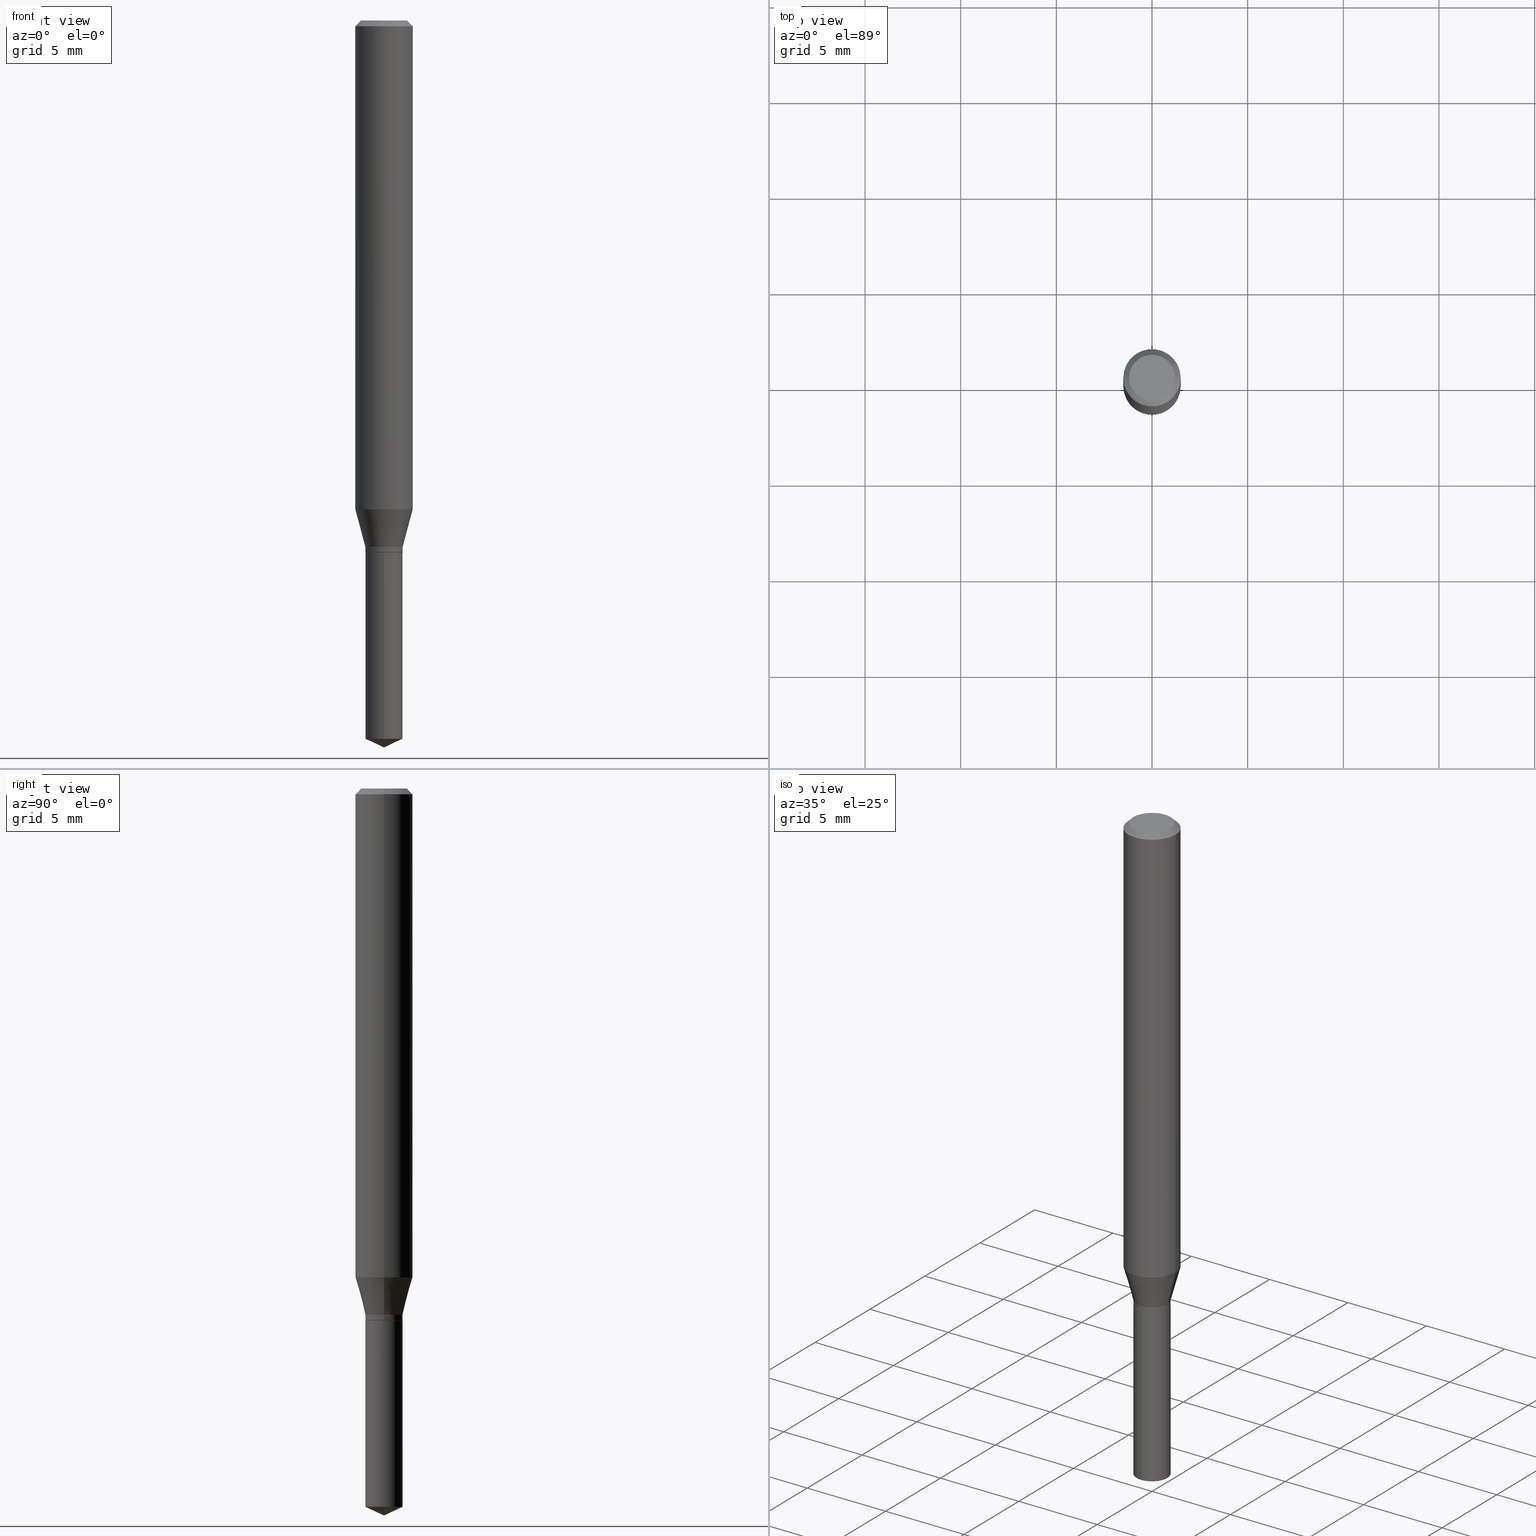
[diagram: canonical four-view strip — front | top / right | iso, engineering-drawing reading convention]
A machine part, canonical four-view strip (front | top / right | iso — engineering-drawing reading convention). The complete STEP part file that produces these views, byte-faithful:
ISO-10303-21;
HEADER;
FILE_DESCRIPTION (( 'STEP AP203' ),
    '1' );
FILE_NAME ('07594.STEP',
    '2024-04-23T23:28:40',
    ( '' ),
    ( '' ),
    'SwSTEP 2.0',
    'SolidWorks 2023',
    '' );
FILE_SCHEMA (( 'CONFIG_CONTROL_DESIGN' ));
ENDSEC;

DATA;
#1 = ADVANCED_FACE ( 'NONE', ( #374 ), #188, .T. ) ;
#2 = CARTESIAN_POINT ( 'NONE',  ( -0.05905000000000006077, 4.195754854663395916E-16, -2.904631170795524694E-30 ) ) ;
#3 = DIMENSIONAL_EXPONENTS ( 1.000000000000000000, 0.000000000000000000, 0.000000000000000000, 0.000000000000000000, 0.000000000000000000, 0.000000000000000000, 0.000000000000000000 ) ;
#4 = CIRCLE ( 'NONE', #289, 0.03840000000000000357 ) ;
#5 = DIRECTION ( 'NONE',  ( 1.000000000000000000, -6.982962677686264344E-15, 0.000000000000000000 ) ) ;
#6 = DIRECTION ( 'NONE',  ( -2.445468806185136597E-29, 3.491481338843145583E-15, 1.000000000000000000 ) ) ;
#7 = LINE ( 'NONE', #43, #109 ) ;
#8 = ORIENTED_EDGE ( 'NONE', *, *, #10, .T. ) ;
#9 = CARTESIAN_POINT ( 'NONE',  ( 2.676565608369631794E-29, -3.821426325363822773E-15, -1.094499999999999806 ) ) ;
#10 = EDGE_CURVE ( 'NONE', #433, #216, #476, .T. ) ;
#11 = DIRECTION ( 'NONE',  ( -6.982962677686266711E-15, -1.000000000000000000, 0.000000000000000000 ) ) ;
#12 = ORIENTED_EDGE ( 'NONE', *, *, #142, .T. ) ;
#13 = CIRCLE ( 'NONE', #190, 0.03840000000000000357 ) ;
#14 = ORIENTED_EDGE ( 'NONE', *, *, #221, .T. ) ;
#15 = DIRECTION ( 'NONE',  ( -2.445468806185136597E-29, 3.491481338843145583E-15, 1.000000000000000000 ) ) ;
#16 = APPROVAL_PERSON_ORGANIZATION ( #464, #342, #286 ) ;
#17 = CYLINDRICAL_SURFACE ( 'NONE', #257, 0.03840000000000000357 ) ;
#18 = VERTEX_POINT ( 'NONE', #154 ) ;
#19 = DIRECTION ( 'NONE',  ( 0.000000000000000000, 0.000000000000000000, 1.000000000000000000 ) ) ;
#20 = ORIENTED_EDGE ( 'NONE', *, *, #358, .T. ) ;
#21 = CC_DESIGN_DATE_AND_TIME_ASSIGNMENT ( #259, #263, ( #350 ) ) ;
#22 = VERTEX_POINT ( 'NONE', #443 ) ;
#23 = AXIS2_PLACEMENT_3D ( 'NONE', #299, #197, #412 ) ;
#24 = LOCAL_TIME ( 19, 28, 40.00000000000000000, #266 ) ;
#25 = ORIENTED_EDGE ( 'NONE', *, *, #382, .F. ) ;
#26 = DATE_TIME_ROLE ( 'creation_date' ) ;
#27 = EDGE_CURVE ( 'NONE', #98, #22, #44, .T. ) ;
#28 = FACE_OUTER_BOUND ( 'NONE', #394, .T. ) ;
#29 = CARTESIAN_POINT ( 'NONE',  ( 0.000000000000000000, 0.000000000000000000, 0.000000000000000000 ) ) ;
#30 = CC_DESIGN_PERSON_AND_ORGANIZATION_ASSIGNMENT ( #368, #108, ( #125 ) ) ;
#31 = DATE_AND_TIME ( #372, #187 ) ;
#32 = EDGE_LOOP ( 'NONE', ( #132, #330, #474, #452 ) ) ;
#33 = DIRECTION ( 'NONE',  ( -2.445458899330790108E-29, 3.491495526022433205E-15, 1.000000000000000000 ) ) ;
#34 = CC_DESIGN_PERSON_AND_ORGANIZATION_ASSIGNMENT ( #441, #475, ( #390 ) ) ;
#35 = PRODUCT_DEFINITION_SHAPE ( 'NONE', 'NONE',  #125 ) ;
#36 = CARTESIAN_POINT ( 'NONE',  ( -0.03789999999999999619, -3.549481401336633678E-15, -1.094500000000000028 ) ) ;
#37 = VECTOR ( 'NONE', #410, 39.37007874015748143 ) ;
#38 = CONICAL_SURFACE ( 'NONE', #319, 0.03840000000000000357, 0.2617993877991499074 ) ;
#39 = EDGE_CURVE ( 'NONE', #18, #333, #65, .T. ) ;
#40 = DIRECTION ( 'NONE',  ( 1.000000000000000000, -6.982962677686265922E-15, 4.876176775795935793E-29 ) ) ;
#41 = CARTESIAN_POINT ( 'NONE',  ( 3.614872991782365897E-29, -5.161091462290022333E-15, -1.478193785926848136 ) ) ;
#42 = DIRECTION ( 'NONE',  ( -2.445458899330790108E-29, 3.491495526022433205E-15, 1.000000000000000000 ) ) ;
#43 = CARTESIAN_POINT ( 'NONE',  ( -0.03840000000000000357, -3.508425879435247821E-15, -1.082999999999999963 ) ) ;
#44 = CIRCLE ( 'NONE', #224, 0.03789999999999999619 ) ;
#45 = CIRCLE ( 'NONE', #329, 0.05904999999999999832 ) ;
#46 = CARTESIAN_POINT ( 'NONE',  ( -2.681457668231258890E-16, -0.03840000000000381997, -1.094499999999999806 ) ) ;
#47 = CC_DESIGN_APPROVAL ( #264, ( #390 ) ) ;
#48 = EDGE_CURVE ( 'NONE', #240, #409, #486, .T. ) ;
#49 = DIRECTION ( 'NONE',  ( 1.000000000000000000, -6.982962677686265133E-15, 0.000000000000000000 ) ) ;
#50 = ORIENTED_EDGE ( 'NONE', *, *, #100, .T. ) ;
#51 = CONICAL_SURFACE ( 'NONE', #136, 84.42940631927434936, 1.134464013796316006 ) ;
#52 = AXIS2_PLACEMENT_3D ( 'NONE', #127, #15, #256 ) ;
#53 = ADVANCED_FACE ( 'NONE', ( #305 ), #144, .T. ) ;
#54 = ORIENTED_EDGE ( 'NONE', *, *, #48, .F. ) ;
#55 = ORIENTED_EDGE ( 'NONE', *, *, #318, .T. ) ;
#56 = CC_DESIGN_PERSON_AND_ORGANIZATION_ASSIGNMENT ( #93, #320, ( #114 ) ) ;
#57 = CALENDAR_DATE ( 2024, 23, 4 ) ;
#58 = ORIENTED_EDGE ( 'NONE', *, *, #76, .F. ) ;
#59 = VECTOR ( 'NONE', #151, 39.37007874015748854 ) ;
#60 = AXIS2_PLACEMENT_3D ( 'NONE', #156, #307, #72 ) ;
#61 = EDGE_LOOP ( 'NONE', ( #253, #428 ) ) ;
#62 = PERSON_AND_ORGANIZATION ( #171, #218 ) ;
#63 = DIRECTION ( 'NONE',  ( 1.000000000000000000, -6.982962677686264344E-15, 0.000000000000000000 ) ) ;
#64 = SECURITY_CLASSIFICATION_LEVEL ( 'unclassified' ) ;
#65 = LINE ( 'NONE', #298, #487 ) ;
#66 = FACE_OUTER_BOUND ( 'NONE', #214, .T. ) ;
#67 = APPROVAL_ROLE ( '' ) ;
#68 = DIRECTION ( 'NONE',  ( -2.445458899330790108E-29, 3.491495526022433205E-15, 1.000000000000000000 ) ) ;
#69 = CIRCLE ( 'NONE', #202, 0.03840000000000000357 ) ;
#70 = ORIENTED_EDGE ( 'NONE', *, *, #139, .T. ) ;
#71 = AXIS2_PLACEMENT_3D ( 'NONE', #388, #170, #466 ) ;
#72 = DIRECTION ( 'NONE',  ( -1.000000000000000000, 6.982962677686265922E-15, -4.876176775795935793E-29 ) ) ;
#73 = CYLINDRICAL_SURFACE ( 'NONE', #275, 0.03840000000000000357 ) ;
#74 = LINE ( 'NONE', #164, #153 ) ;
#75 = DIRECTION ( 'NONE',  ( 1.000000000000000000, -6.982962677686266711E-15, 0.000000000000000000 ) ) ;
#76 = EDGE_CURVE ( 'NONE', #409, #366, #115, .T. ) ;
#77 = DIRECTION ( 'NONE',  ( 1.000000000000000000, -6.982962677686264344E-15, 0.000000000000000000 ) ) ;
#78 = EDGE_LOOP ( 'NONE', ( #288, #245, #180, #210 ) ) ;
#79 = DIRECTION ( 'NONE',  ( 2.445468806185136597E-29, -3.491481338843145583E-15, -1.000000000000000000 ) ) ;
#80 = CARTESIAN_POINT ( 'NONE',  ( 2.459978141446892264E-29, -3.512196824224644331E-15, -1.005933150823702382 ) ) ;
#81 = DIRECTION ( 'NONE',  ( -2.445458899330790108E-29, 3.491495526022433599E-15, 1.000000000000000000 ) ) ;
#82 = APPLICATION_CONTEXT ( 'configuration controlled 3d designs of mechanical parts and assemblies' ) ;
#83 = ORIENTED_EDGE ( 'NONE', *, *, #215, .T. ) ;
#84 = CARTESIAN_POINT ( 'NONE',  ( 0.000000000000000000, 0.000000000000000000, 0.000000000000000000 ) ) ;
#85 = DIRECTION ( 'NONE',  ( -2.445458899330790108E-29, 3.491495526022433205E-15, 1.000000000000000000 ) ) ;
#86 = CARTESIAN_POINT ( 'NONE',  ( 3.658651059288794515E-29, -5.223626456482161457E-15, -1.496099999999999985 ) ) ;
#87 = UNCERTAINTY_MEASURE_WITH_UNIT (LENGTH_MEASURE( 1.000000000000000082E-05 ), #332, 'distance_accuracy_value', 'NONE');
#88 = CC_DESIGN_DATE_AND_TIME_ASSIGNMENT ( #334, #26, ( #125 ) ) ;
#89 = COORDINATED_UNIVERSAL_TIME_OFFSET ( 5, 0, .BEHIND. ) ;
#90 = ADVANCED_FACE ( 'NONE', ( #449 ), #73, .T. ) ;
#91 = ORIENTED_EDGE ( 'NONE', *, *, #191, .T. ) ;
#92 = ORIENTED_EDGE ( 'NONE', *, *, #163, .F. ) ;
#93 = PERSON_AND_ORGANIZATION ( #171, #218 ) ;
#94 = DIRECTION ( 'NONE',  ( 0.7071067811864267805, -2.468850131080992517E-15, 0.7071067811866682540 ) ) ;
#95 = ORIENTED_EDGE ( 'NONE', *, *, #479, .F. ) ;
#96 = AXIS2_PLACEMENT_3D ( 'NONE', #158, #346, #455 ) ;
#97 = CARTESIAN_POINT ( 'NONE',  ( -0.03840000000000000357, -3.527629026798885149E-15, -1.093999999999999861 ) ) ;
#98 = VERTEX_POINT ( 'NONE', #36 ) ;
#99 = DIRECTION ( 'NONE',  ( -6.982962677686265133E-15, -1.000000000000000000, 3.557093741750342424E-15 ) ) ;
#100 = EDGE_CURVE ( 'NONE', #323, #438, #4, .T. ) ;
#101 = DIRECTION ( 'NONE',  ( 1.000000000000000000, 0.000000000000000000, 0.000000000000000000 ) ) ;
#102 = CIRCLE ( 'NONE', #356, 0.03840000000000000357 ) ;
#103 = ORIENTED_EDGE ( 'NONE', *, *, #420, .T. ) ;
#104 = COORDINATED_UNIVERSAL_TIME_OFFSET ( 5, 0, .BEHIND. ) ;
#105 = CARTESIAN_POINT ( 'NONE',  ( 3.658672935554494692E-29, -5.223595400746700193E-15, -1.496099999999999985 ) ) ;
#106 = CARTESIAN_POINT ( 'NONE',  ( 0.03840000000000000357, -4.087826351517553684E-15, -1.093999999999999861 ) ) ;
#107 = DIRECTION ( 'NONE',  ( -6.982962677686266711E-15, -1.000000000000000000, 0.000000000000000000 ) ) ;
#108 = PERSON_AND_ORGANIZATION_ROLE ( 'creator' ) ;
#109 = VECTOR ( 'NONE', #349, 39.37007874015748854 ) ;
#110 = EDGE_CURVE ( 'NONE', #323, #18, #400, .T. ) ;
#111 = CARTESIAN_POINT ( 'NONE',  ( 2.648442717098502966E-29, -3.781274289967126614E-15, -1.082999999999999963 ) ) ;
#112 = APPLICATION_PROTOCOL_DEFINITION ( 'international standard', 'config_control_design', 1994, #378 ) ;
#113 = CARTESIAN_POINT ( 'NONE',  ( 2.676565608369632355E-29, -3.821426325363822773E-15, -1.094500000000000028 ) ) ;
#114 = PRODUCT ( '07594', '07594', '', ( #291 ) ) ;
#115 = LINE ( 'NONE', #304, #37 ) ;
#116 = ADVANCED_FACE ( 'NONE', ( #28 ), #51, .T. ) ;
#117 = DIRECTION ( 'NONE',  ( -2.445458899330790108E-29, 3.491495526022433205E-15, 1.000000000000000000 ) ) ;
#118 = ORIENTED_EDGE ( 'NONE', *, *, #402, .F. ) ;
#119 = ADVANCED_FACE ( 'NONE', ( #371 ), #185, .T. ) ;
#120 = AXIS2_PLACEMENT_3D ( 'NONE', #310, #386, #205 ) ;
#121 = CYLINDRICAL_SURFACE ( 'NONE', #248, 0.03840000000000000357 ) ;
#122 = FACE_OUTER_BOUND ( 'NONE', #294, .T. ) ;
#123 = FACE_OUTER_BOUND ( 'NONE', #32, .T. ) ;
#124 = FACE_OUTER_BOUND ( 'NONE', #148, .T. ) ;
#125 = PRODUCT_DEFINITION ( 'UNKNOWN', '', #390, #435 ) ;
#126 = ORIENTED_EDGE ( 'NONE', *, *, #168, .T. ) ;
#127 = CARTESIAN_POINT ( 'NONE',  ( 2.888098660104663766E-31, -4.123439461173779647E-17, -0.01181000000000007044 ) ) ;
#128 = ORIENTED_EDGE ( 'NONE', *, *, #139, .F. ) ;
#129 = ADVANCED_BREP_SHAPE_REPRESENTATION ( '07594', ( #482, #313, #155 ), #279 ) ;
#130 = APPROVAL_STATUS ( 'not_yet_approved' ) ;
#131 = CARTESIAN_POINT ( 'NONE',  ( -0.05905000000000011628, -3.092621338758304049E-15, -1.005933150823702382 ) ) ;
#132 = ORIENTED_EDGE ( 'NONE', *, *, #420, .F. ) ;
#133 = APPROVAL ( #405, 'UNSPECIFIED' ) ;
#134 = CARTESIAN_POINT ( 'NONE',  ( 0.05905000000000006077, -4.123439461173744764E-16, 2.879382386107503023E-30 ) ) ;
#135 = ORIENTED_EDGE ( 'NONE', *, *, #200, .F. ) ;
#136 = AXIS2_PLACEMENT_3D ( 'NONE', #265, #68, #182 ) ;
#137 = CARTESIAN_POINT ( 'NONE',  ( 0.03789999999999999619, -4.086080610848132181E-15, -1.094500000000000028 ) ) ;
#138 = EDGE_LOOP ( 'NONE', ( #473, #326 ) ) ;
#139 = EDGE_CURVE ( 'NONE', #409, #463, #199, .T. ) ;
#140 = ORIENTED_EDGE ( 'NONE', *, *, #209, .F. ) ;
#141 = ORIENTED_EDGE ( 'NONE', *, *, #168, .F. ) ;
#142 = EDGE_CURVE ( 'NONE', #216, #176, #226, .T. ) ;
#143 = PERSON_AND_ORGANIZATION ( #171, #218 ) ;
#144 = CONICAL_SURFACE ( 'NONE', #316, 0.03840000000000000357, 0.2617993877991499074 ) ;
#145 = CIRCLE ( 'NONE', #415, 0.03840000000000000357 ) ;
#146 = CARTESIAN_POINT ( 'NONE',  ( -0.05904999999999999832, 3.711095515056362547E-16, -0.01181000000000007044 ) ) ;
#147 = VECTOR ( 'NONE', #360, 39.37007874015748143 ) ;
#148 = EDGE_LOOP ( 'NONE', ( #54, #207, #128 ) ) ;
#149 = DIRECTION ( 'NONE',  ( 1.000000000000000000, -6.982962677686264344E-15, 0.000000000000000000 ) ) ;
#150 = DIRECTION ( 'NONE',  ( -6.982962677686265133E-15, -1.000000000000000000, 3.557093741750342424E-15 ) ) ;
#151 = DIRECTION ( 'NONE',  ( 6.439704144417030353E-15, 0.9063077870366521571, 0.4226182617406946673 ) ) ;
#152 = CARTESIAN_POINT ( 'NONE',  ( -0.03789999999999999619, -3.552130628510744879E-15, -1.094500000000000028 ) ) ;
#153 = VECTOR ( 'NONE', #384, 39.37007874015748143 ) ;
#154 = CARTESIAN_POINT ( 'NONE',  ( 0.03840000000000000357, -4.049420056790279028E-15, -1.082999999999999963 ) ) ;
#155 = AXIS2_PLACEMENT_3D ( 'NONE', #84, #19, #101 ) ;
#156 = CARTESIAN_POINT ( 'NONE',  ( 4.132873053354867254E-48, -5.900647395337818946E-34, -1.690012582823346072E-19 ) ) ;
#157 = CARTESIAN_POINT ( 'NONE',  ( -9.261924752013118283E-28, 1.322368428517963298E-13, 37.87397874015748300 ) ) ;
#158 = CARTESIAN_POINT ( 'NONE',  ( 8.265746106709734507E-48, -1.180129479067563789E-33, -3.380025165646692144E-19 ) ) ;
#159 = CIRCLE ( 'NONE', #478, 0.03840000000000000357 ) ;
#160 = CIRCLE ( 'NONE', #23, 0.05905000000000011628 ) ;
#161 = ADVANCED_FACE ( 'NONE', ( #123 ), #383, .T. ) ;
#162 = LINE ( 'NONE', #194, #169 ) ;
#163 = EDGE_CURVE ( 'NONE', #472, #469, #7, .T. ) ;
#164 = CARTESIAN_POINT ( 'NONE',  ( 0.05904999999999999832, -4.463468013801466955E-16, -0.01181000000000007044 ) ) ;
#165 = FACE_OUTER_BOUND ( 'NONE', #292, .T. ) ;
#166 = DIRECTION ( 'NONE',  ( -6.982962677686265133E-15, -1.000000000000000000, 3.557093741750342424E-15 ) ) ;
#167 = ORIENTED_EDGE ( 'NONE', *, *, #358, .F. ) ;
#168 = EDGE_CURVE ( 'NONE', #463, #174, #281, .T. ) ;
#169 = VECTOR ( 'NONE', #203, 39.37007874015748143 ) ;
#170 = DIRECTION ( 'NONE',  ( -2.445468806185136597E-29, 3.491481338843145583E-15, 1.000000000000000000 ) ) ;
#171 = PERSON ( 'UNSPECIFIED', 'UNSPECIFIED', 'UNSPECIFIED', ('UNSPECIFIED'), ('UNSPECIFIED'), ('UNSPECIFIED') ) ;
#172 = EDGE_LOOP ( 'NONE', ( #167, #290, #243, #295 ) ) ;
#173 = EDGE_CURVE ( 'NONE', #472, #18, #13, .T. ) ;
#174 = VERTEX_POINT ( 'NONE', #46 ) ;
#175 = AXIS2_PLACEMENT_3D ( 'NONE', #242, #345, #235 ) ;
#176 = VERTEX_POINT ( 'NONE', #280 ) ;
#177 = APPROVAL_DATE_TIME ( #31, #133 ) ;
#178 = LENGTH_MEASURE_WITH_UNIT ( LENGTH_MEASURE( 0.02539999999999999897 ), #293 );
#179 = EDGE_CURVE ( 'NONE', #438, #323, #159, .T. ) ;
#180 = ORIENTED_EDGE ( 'NONE', *, *, #318, .F. ) ;
#181 = PERSON_AND_ORGANIZATION_ROLE ( 'design_supplier' ) ;
#182 = DIRECTION ( 'NONE',  ( -6.982962677686266711E-15, -1.000000000000000000, 3.520397390770453475E-15 ) ) ;
#183 = APPROVAL_DATE_TIME ( #398, #264 ) ;
#184 = CARTESIAN_POINT ( 'NONE',  ( 2.676565608369631794E-29, -3.821426325363822773E-15, -1.094499999999999806 ) ) ;
#185 = CYLINDRICAL_SURFACE ( 'NONE', #348, 0.05905000000000006077 ) ;
#186 = COORDINATED_UNIVERSAL_TIME_OFFSET ( 5, 0, .BEHIND. ) ;
#187 = LOCAL_TIME ( 19, 28, 40.00000000000000000, #223 ) ;
#188 = CYLINDRICAL_SURFACE ( 'NONE', #254, 0.03840000000000000357 ) ;
#189 = ORIENTED_EDGE ( 'NONE', *, *, #303, .F. ) ;
#190 = AXIS2_PLACEMENT_3D ( 'NONE', #198, #456, #77 ) ;
#191 = EDGE_CURVE ( 'NONE', #463, #409, #69, .T. ) ;
#192 = CARTESIAN_POINT ( 'NONE',  ( 2.675342873966538993E-29, -3.819680584694400481E-15, -1.093999999999999861 ) ) ;
#193 = SHAPE_DEFINITION_REPRESENTATION ( #35, #129 ) ;
#194 = CARTESIAN_POINT ( 'NONE',  ( 3.658651059288795076E-29, -5.223626456482161457E-15, -1.496099999999999985 ) ) ;
#195 = ORIENTED_EDGE ( 'NONE', *, *, #142, .F. ) ;
#196 = DIRECTION ( 'NONE',  ( -2.445458899330790108E-29, 3.491495526022433205E-15, 1.000000000000000000 ) ) ;
#197 = DIRECTION ( 'NONE',  ( -2.445468806185136597E-29, 3.491481338843145583E-15, 1.000000000000000000 ) ) ;
#198 = CARTESIAN_POINT ( 'NONE',  ( 2.648442717098502966E-29, -3.781274289967126614E-15, -1.082999999999999963 ) ) ;
#199 = CIRCLE ( 'NONE', #407, 0.03840000000000000357 ) ;
#200 = EDGE_CURVE ( 'NONE', #433, #458, #74, .T. ) ;
#201 = AXIS2_PLACEMENT_3D ( 'NONE', #157, #117, #427 ) ;
#202 = AXIS2_PLACEMENT_3D ( 'NONE', #41, #196, #11 ) ;
#203 = DIRECTION ( 'NONE',  ( -6.328713451373374901E-15, -0.9063077870366492705, 0.4226182617407009956 ) ) ;
#204 = ORIENTED_EDGE ( 'NONE', *, *, #200, .T. ) ;
#205 = DIRECTION ( 'NONE',  ( -1.000000000000000000, 6.982962677686266711E-15, 0.000000000000000000 ) ) ;
#206 = EDGE_CURVE ( 'NONE', #240, #463, #162, .T. ) ;
#207 = ORIENTED_EDGE ( 'NONE', *, *, #206, .T. ) ;
#208 = CONICAL_SURFACE ( 'NONE', #241, 0.05904999999999999832, 0.7853981633974452814 ) ;
#209 = EDGE_CURVE ( 'NONE', #469, #176, #490, .T. ) ;
#210 = ORIENTED_EDGE ( 'NONE', *, *, #39, .F. ) ;
#211 = CC_DESIGN_SECURITY_CLASSIFICATION ( #350, ( #390 ) ) ;
#212 = CARTESIAN_POINT ( 'NONE',  ( 0.04724000000000000421, -3.852183633974369345E-16, -3.380025165621689721E-19 ) ) ;
#213 = ORIENTED_EDGE ( 'NONE', *, *, #431, .T. ) ;
#214 = EDGE_LOOP ( 'NONE', ( #91, #284, #118, #141 ) ) ;
#215 = EDGE_CURVE ( 'NONE', #22, #98, #340, .T. ) ;
#216 = VERTEX_POINT ( 'NONE', #308 ) ;
#217 = APPROVAL_STATUS ( 'not_yet_approved' ) ;
#218 = ORGANIZATION ( 'UNSPECIFIED', 'UNSPECIFIED', '' ) ;
#219 = CARTESIAN_POINT ( 'NONE',  ( 0.03840000000000000357, -2.681457668231526610E-16, 1.872451881905639538E-30 ) ) ;
#220 = CALENDAR_DATE ( 2024, 23, 4 ) ;
#221 = EDGE_CURVE ( 'NONE', #216, #433, #359, .T. ) ;
#222 = DIRECTION ( 'NONE',  ( -2.445468806185136597E-29, 3.491481338843145583E-15, 1.000000000000000000 ) ) ;
#223 = COORDINATED_UNIVERSAL_TIME_OFFSET ( 5, 0, .BEHIND. ) ;
#224 = AXIS2_PLACEMENT_3D ( 'NONE', #113, #271, #343 ) ;
#225 = CIRCLE ( 'NONE', #461, 0.03840000000000000357 ) ;
#226 = LINE ( 'NONE', #146, #302 ) ;
#227 = AXIS2_PLACEMENT_3D ( 'NONE', #314, #351, #49 ) ;
#228 = EDGE_LOOP ( 'NONE', ( #92, #436, #418, #189 ) ) ;
#229 = DIRECTION ( 'NONE',  ( -2.445458899330790108E-29, 3.491495526022433205E-15, 1.000000000000000000 ) ) ;
#230 = ADVANCED_FACE ( 'NONE', ( #165 ), #468, .T. ) ;
#231 = CARTESIAN_POINT ( 'NONE',  ( 0.000000000000000000, 0.000000000000000000, 0.000000000000000000 ) ) ;
#232 = ADVANCED_FACE ( 'NONE', ( #124 ), #454, .T. ) ;
#233 = CARTESIAN_POINT ( 'NONE',  ( 2.675342873966538993E-29, -3.819680584694400481E-15, -1.093999999999999861 ) ) ;
#234 = DIRECTION ( 'NONE',  ( -2.445468806185136597E-29, 3.491481338843145583E-15, 1.000000000000000000 ) ) ;
#235 = DIRECTION ( 'NONE',  ( 1.000000000000000000, -6.982962677686265133E-15, 0.000000000000000000 ) ) ;
#236 = VECTOR ( 'NONE', #94, 39.37007874015748143 ) ;
#237 = FACE_OUTER_BOUND ( 'NONE', #138, .T. ) ;
#238 = EDGE_CURVE ( 'NONE', #176, #458, #45, .T. ) ;
#239 = DIRECTION ( 'NONE',  ( -2.445468806185136597E-29, 3.491481338843145583E-15, 1.000000000000000000 ) ) ;
#240 = VERTEX_POINT ( 'NONE', #86 ) ;
#241 = AXIS2_PLACEMENT_3D ( 'NONE', #421, #79, #381 ) ;
#242 = CARTESIAN_POINT ( 'NONE',  ( 2.676565608369632355E-29, -3.821426325363822773E-15, -1.094500000000000028 ) ) ;
#243 = ORIENTED_EDGE ( 'NONE', *, *, #110, .T. ) ;
#244 = FACE_OUTER_BOUND ( 'NONE', #78, .T. ) ;
#245 = ORIENTED_EDGE ( 'NONE', *, *, #163, .T. ) ;
#246 = ADVANCED_FACE ( 'NONE', ( #416 ), #321, .T. ) ;
#247 = ORIENTED_EDGE ( 'NONE', *, *, #206, .F. ) ;
#248 = AXIS2_PLACEMENT_3D ( 'NONE', #273, #422, #413 ) ;
#249 = ORIENTED_EDGE ( 'NONE', *, *, #209, .T. ) ;
#250 = ORIENTED_EDGE ( 'NONE', *, *, #470, .F. ) ;
#251 = ADVANCED_FACE ( 'NONE', ( #353 ), #379, .F. ) ;
#252 = CYLINDRICAL_SURFACE ( 'NONE', #71, 0.05905000000000006077 ) ;
#253 = ORIENTED_EDGE ( 'NONE', *, *, #215, .F. ) ;
#254 = AXIS2_PLACEMENT_3D ( 'NONE', #485, #33, #150 ) ;
#255 = PERSON_AND_ORGANIZATION ( #171, #218 ) ;
#256 = DIRECTION ( 'NONE',  ( 1.000000000000000000, -6.982962677686266711E-15, 0.000000000000000000 ) ) ;
#257 = AXIS2_PLACEMENT_3D ( 'NONE', #467, #42, #99 ) ;
#258 = ORIENTED_EDGE ( 'NONE', *, *, #303, .T. ) ;
#259 = DATE_AND_TIME ( #484, #331 ) ;
#260 = ADVANCED_FACE ( 'NONE', ( #122 ), #208, .T. ) ;
#261 = ORIENTED_EDGE ( 'NONE', *, *, #347, .F. ) ;
#262 = FACE_OUTER_BOUND ( 'NONE', #357, .T. ) ;
#263 = DATE_TIME_ROLE ( 'classification_date' ) ;
#264 = APPROVAL ( #217, 'UNSPECIFIED' ) ;
#265 = CARTESIAN_POINT ( 'NONE',  ( -9.261924752013118283E-28, 1.322368428517963298E-13, 37.87397874015748300 ) ) ;
#266 = COORDINATED_UNIVERSAL_TIME_OFFSET ( 5, 0, .BEHIND. ) ;
#267 = AXIS2_PLACEMENT_3D ( 'NONE', #184, #306, #417 ) ;
#268 = EDGE_LOOP ( 'NONE', ( #50, #20, #261, #440 ) ) ;
#269 = PLANE ( 'NONE',  #60 ) ;
#270 = LOCAL_TIME ( 19, 28, 40.00000000000000000, #104 ) ;
#271 = DIRECTION ( 'NONE',  ( -2.445468806185136597E-29, 3.491481338843145583E-15, 1.000000000000000000 ) ) ;
#272 = DIRECTION ( 'NONE',  ( -6.982962677686265133E-15, -1.000000000000000000, 3.557093741750342424E-15 ) ) ;
#273 = CARTESIAN_POINT ( 'NONE',  ( 0.000000000000000000, 0.000000000000000000, 0.000000000000000000 ) ) ;
#274 = DIRECTION ( 'NONE',  ( -2.438088387897960049E-29, 3.491481338843145188E-15, 1.000000000000000000 ) ) ;
#275 = AXIS2_PLACEMENT_3D ( 'NONE', #231, #406, #377 ) ;
#276 = DIRECTION ( 'NONE',  ( 1.000000000000000000, -6.982962677686266711E-15, 0.000000000000000000 ) ) ;
#277 = CIRCLE ( 'NONE', #52, 0.05904999999999999832 ) ;
#278 = ADVANCED_FACE ( 'NONE', ( #237 ), #393, .F. ) ;
#279 =( GEOMETRIC_REPRESENTATION_CONTEXT ( 3 ) GLOBAL_UNCERTAINTY_ASSIGNED_CONTEXT ( ( #87 ) ) GLOBAL_UNIT_ASSIGNED_CONTEXT ( ( #332, #445, #448 ) ) REPRESENTATION_CONTEXT ( 'NONE', 'WORKASPACE' ) );
#280 = CARTESIAN_POINT ( 'NONE',  ( -0.05904999999999999832, -1.357140123951850551E-15, -0.01181000000000007044 ) ) ;
#281 = LINE ( 'NONE', #423, #425 ) ;
#282 = CARTESIAN_POINT ( 'NONE',  ( -0.03840000000000000357, 2.728484105318784968E-16, -1.888871074657883770E-30 ) ) ;
#283 = DIRECTION ( 'NONE',  ( -0.7071067811865453523, 2.468850131082234184E-15, -0.7071067811865496822 ) ) ;
#284 = ORIENTED_EDGE ( 'NONE', *, *, #76, .T. ) ;
#285 = VECTOR ( 'NONE', #387, 39.37007874015748143 ) ;
#286 = APPROVAL_ROLE ( '' ) ;
#287 = LINE ( 'NONE', #134, #147 ) ;
#288 = ORIENTED_EDGE ( 'NONE', *, *, #347, .T. ) ;
#289 = AXIS2_PLACEMENT_3D ( 'NONE', #192, #344, #489 ) ;
#290 = ORIENTED_EDGE ( 'NONE', *, *, #179, .T. ) ;
#291 = MECHANICAL_CONTEXT ( 'NONE', #378, 'mechanical' ) ;
#292 = EDGE_LOOP ( 'NONE', ( #83, #103, #373, #95 ) ) ;
#293 =( LENGTH_UNIT ( ) NAMED_UNIT ( * ) SI_UNIT ( $, .METRE. ) );
#294 = EDGE_LOOP ( 'NONE', ( #362, #204, #213, #195 ) ) ;
#295 = ORIENTED_EDGE ( 'NONE', *, *, #173, .F. ) ;
#296 = CLOSED_SHELL ( 'NONE', ( #230, #260, #119, #364, #309, #90, #53, #450, #246, #325, #251, #161 ) ) ;
#297 = PERSON_AND_ORGANIZATION_ROLE ( 'classification_officer' ) ;
#298 = CARTESIAN_POINT ( 'NONE',  ( 0.03840000000000000357, -4.049420056790279028E-15, -1.082999999999999963 ) ) ;
#299 = CARTESIAN_POINT ( 'NONE',  ( 2.459978141446892264E-29, -3.512196824224644331E-15, -1.005933150823702382 ) ) ;
#300 = DIRECTION ( 'NONE',  ( -2.445468806185136597E-29, 3.491481338843145583E-15, 1.000000000000000000 ) ) ;
#301 = CARTESIAN_POINT ( 'NONE',  ( 8.265746106709734507E-48, -1.180129479067563789E-33, -3.380025165646692144E-19 ) ) ;
#302 = VECTOR ( 'NONE', #283, 39.37007874015748143 ) ;
#303 = EDGE_CURVE ( 'NONE', #469, #333, #160, .T. ) ;
#304 = CARTESIAN_POINT ( 'NONE',  ( 2.728484105319052194E-16, 0.03839999999999618024, -1.094500000000000028 ) ) ;
#305 = FACE_OUTER_BOUND ( 'NONE', #228, .T. ) ;
#306 = DIRECTION ( 'NONE',  ( 2.445458899330789267E-29, -3.491495526022433599E-15, -1.000000000000000000 ) ) ;
#307 = DIRECTION ( 'NONE',  ( 2.438088387897960049E-29, -3.491481338843145188E-15, -1.000000000000000000 ) ) ;
#308 = CARTESIAN_POINT ( 'NONE',  ( -0.04724000000000000421, 3.504923541997677355E-16, -3.380025165670481712E-19 ) ) ;
#309 = ADVANCED_FACE ( 'NONE', ( #324 ), #121, .T. ) ;
#310 = CARTESIAN_POINT ( 'NONE',  ( 2.888098660104663766E-31, -4.123439461173779647E-17, -0.01181000000000007044 ) ) ;
#311 = DIRECTION ( 'NONE',  ( -2.445468806185136877E-29, 3.491481338843145188E-15, 1.000000000000000000 ) ) ;
#312 = VECTOR ( 'NONE', #311, 39.37007874015748143 ) ;
#313 = MANIFOLD_SOLID_BREP ( 'Body-Move/Copy2[2]', #296 ) ;
#314 = CARTESIAN_POINT ( 'NONE',  ( 2.676565608369632355E-29, -3.821426325363822773E-15, -1.094500000000000028 ) ) ;
#315 = CARTESIAN_POINT ( 'NONE',  ( 2.728484105319146858E-16, 0.03839999999999485492, -1.478193785926848136 ) ) ;
#316 = AXIS2_PLACEMENT_3D ( 'NONE', #111, #222, #63 ) ;
#317 = CARTESIAN_POINT ( 'NONE',  ( 2.888098660104663766E-31, -4.123439461173779647E-17, -0.01181000000000007044 ) ) ;
#318 = EDGE_CURVE ( 'NONE', #333, #469, #434, .T. ) ;
#319 = AXIS2_PLACEMENT_3D ( 'NONE', #447, #426, #352 ) ;
#320 = PERSON_AND_ORGANIZATION_ROLE ( 'design_owner' ) ;
#321 = CONICAL_SURFACE ( 'NONE', #120, 0.05904999999999999832, 0.7853981633974452814 ) ;
#322 = APPROVAL_PERSON_ORGANIZATION ( #255, #264, #439 ) ;
#323 = VERTEX_POINT ( 'NONE', #106 ) ;
#324 = FACE_OUTER_BOUND ( 'NONE', #268, .T. ) ;
#325 = ADVANCED_FACE ( 'NONE', ( #262 ), #269, .F. ) ;
#326 = ORIENTED_EDGE ( 'NONE', *, *, #382, .T. ) ;
#327 = CARTESIAN_POINT ( 'NONE',  ( 0.05904999999999999832, -4.535783407291118600E-16, -0.01181000000000007044 ) ) ;
#328 = ORIENTED_EDGE ( 'NONE', *, *, #470, .T. ) ;
#329 = AXIS2_PLACEMENT_3D ( 'NONE', #317, #414, #276 ) ;
#330 = ORIENTED_EDGE ( 'NONE', *, *, #27, .T. ) ;
#331 = LOCAL_TIME ( 19, 28, 40.00000000000000000, #186 ) ;
#332 =( CONVERSION_BASED_UNIT ( 'INCH', #178 ) LENGTH_UNIT ( ) NAMED_UNIT ( #3 ) );
#333 = VERTEX_POINT ( 'NONE', #404 ) ;
#334 = DATE_AND_TIME ( #339, #24 ) ;
#335 = CARTESIAN_POINT ( 'NONE',  ( 3.614872991782365897E-29, -5.161091462290022333E-15, -1.478193785926848136 ) ) ;
#336 = CC_DESIGN_PERSON_AND_ORGANIZATION_ASSIGNMENT ( #143, #297, ( #350 ) ) ;
#337 = DATE_AND_TIME ( #57, #385 ) ;
#338 = DIRECTION ( 'NONE',  ( 0.2588190451025211836, 1.565188264969622559E-15, 0.9659258262890679791 ) ) ;
#339 = CALENDAR_DATE ( 2024, 23, 4 ) ;
#340 = CIRCLE ( 'NONE', #227, 0.03789999999999999619 ) ;
#341 = ORIENTED_EDGE ( 'NONE', *, *, #431, .F. ) ;
#342 = APPROVAL ( #130, 'UNSPECIFIED' ) ;
#343 = DIRECTION ( 'NONE',  ( 1.000000000000000000, -6.982962677686265133E-15, 0.000000000000000000 ) ) ;
#344 = DIRECTION ( 'NONE',  ( -2.445468806185136597E-29, 3.491481338843145583E-15, 1.000000000000000000 ) ) ;
#345 = DIRECTION ( 'NONE',  ( -2.445468806185136597E-29, 3.491481338843145583E-15, 1.000000000000000000 ) ) ;
#346 = DIRECTION ( 'NONE',  ( -2.445468806185136597E-29, 3.491481338843145583E-15, 1.000000000000000000 ) ) ;
#347 = EDGE_CURVE ( 'NONE', #18, #472, #225, .T. ) ;
#348 = AXIS2_PLACEMENT_3D ( 'NONE', #29, #300, #442 ) ;
#349 = DIRECTION ( 'NONE',  ( -0.2588190451025211836, 5.211531920934547886E-15, 0.9659258262890679791 ) ) ;
#350 = SECURITY_CLASSIFICATION ( '', '', #64 ) ;
#351 = DIRECTION ( 'NONE',  ( -2.445468806185136597E-29, 3.491481338843145583E-15, 1.000000000000000000 ) ) ;
#352 = DIRECTION ( 'NONE',  ( 1.000000000000000000, -6.982962677686264344E-15, 0.000000000000000000 ) ) ;
#353 = FACE_OUTER_BOUND ( 'NONE', #61, .T. ) ;
#354 = ADVANCED_FACE ( 'NONE', ( #66 ), #17, .T. ) ;
#355 = EDGE_LOOP ( 'NONE', ( #58, #70, #126, #25 ) ) ;
#356 = AXIS2_PLACEMENT_3D ( 'NONE', #376, #85, #272 ) ;
#357 = EDGE_LOOP ( 'NONE', ( #14, #8 ) ) ;
#358 = EDGE_CURVE ( 'NONE', #438, #472, #397, .T. ) ;
#359 = CIRCLE ( 'NONE', #96, 0.04724000000000000421 ) ;
#360 = DIRECTION ( 'NONE',  ( -2.445468806185136877E-29, 3.491481338843145188E-15, 1.000000000000000000 ) ) ;
#361 = ORIENTED_EDGE ( 'NONE', *, *, #221, .F. ) ;
#362 = ORIENTED_EDGE ( 'NONE', *, *, #10, .F. ) ;
#363 = AXIS2_PLACEMENT_3D ( 'NONE', #462, #274, #40 ) ;
#364 = ADVANCED_FACE ( 'NONE', ( #244 ), #38, .T. ) ;
#365 = LINE ( 'NONE', #137, #236 ) ;
#366 = VERTEX_POINT ( 'NONE', #411 ) ;
#367 = APPROVAL_PERSON_ORGANIZATION ( #401, #133, #67 ) ;
#368 = PERSON_AND_ORGANIZATION ( #171, #218 ) ;
#369 = CC_DESIGN_PERSON_AND_ORGANIZATION_ASSIGNMENT ( #62, #181, ( #390 ) ) ;
#370 = DIRECTION ( 'NONE',  ( -2.445468806185136877E-29, 3.491481338843145188E-15, 1.000000000000000000 ) ) ;
#371 = FACE_OUTER_BOUND ( 'NONE', #396, .T. ) ;
#372 = CALENDAR_DATE ( 2024, 23, 4 ) ;
#373 = ORIENTED_EDGE ( 'NONE', *, *, #100, .F. ) ;
#374 = FACE_OUTER_BOUND ( 'NONE', #355, .T. ) ;
#375 = CARTESIAN_POINT ( 'NONE',  ( 2.648442717098502966E-29, -3.781274289967126614E-15, -1.082999999999999963 ) ) ;
#376 = CARTESIAN_POINT ( 'NONE',  ( 2.676565608369631794E-29, -3.821426325363822773E-15, -1.094499999999999806 ) ) ;
#377 = DIRECTION ( 'NONE',  ( 1.000000000000000000, -6.982962677686266711E-15, 4.876176775795935793E-29 ) ) ;
#378 = APPLICATION_CONTEXT ( 'configuration controlled 3d designs of mechanical parts and assemblies' ) ;
#379 = PLANE ( 'NONE',  #363 ) ;
#380 = DIRECTION ( 'NONE',  ( 1.000000000000000000, -6.982962677686265133E-15, 0.000000000000000000 ) ) ;
#381 = DIRECTION ( 'NONE',  ( -1.000000000000000000, 6.982962677686266711E-15, 0.000000000000000000 ) ) ;
#382 = EDGE_CURVE ( 'NONE', #366, #174, #102, .T. ) ;
#383 = CONICAL_SURFACE ( 'NONE', #175, 0.03789999999999999619, 0.7853981633972775267 ) ;
#384 = DIRECTION ( 'NONE',  ( 0.7071067811865453523, -7.319954787623248157E-15, -0.7071067811865496822 ) ) ;
#385 = LOCAL_TIME ( 19, 28, 40.00000000000000000, #89 ) ;
#386 = DIRECTION ( 'NONE',  ( 2.445468806185136597E-29, -3.491481338843145583E-15, -1.000000000000000000 ) ) ;
#387 = DIRECTION ( 'NONE',  ( -2.445468806185136877E-29, 3.491481338843145188E-15, 1.000000000000000000 ) ) ;
#388 = CARTESIAN_POINT ( 'NONE',  ( 0.000000000000000000, 0.000000000000000000, 0.000000000000000000 ) ) ;
#389 = ORIENTED_EDGE ( 'NONE', *, *, #238, .F. ) ;
#390 = PRODUCT_DEFINITION_FORMATION_WITH_SPECIFIED_SOURCE ( 'ANY', '', #114, .NOT_KNOWN. ) ;
#391 = ORIENTED_EDGE ( 'NONE', *, *, #238, .T. ) ;
#392 = APPLICATION_PROTOCOL_DEFINITION ( 'international standard', 'config_control_design', 1994, #82 ) ;
#393 = PLANE ( 'NONE',  #267 ) ;
#394 = EDGE_LOOP ( 'NONE', ( #247, #446, #437 ) ) ;
#395 = FACE_OUTER_BOUND ( 'NONE', #465, .T. ) ;
#396 = EDGE_LOOP ( 'NONE', ( #55, #249, #341, #250 ) ) ;
#397 = LINE ( 'NONE', #282, #285 ) ;
#398 = DATE_AND_TIME ( #220, #270 ) ;
#399 = CARTESIAN_POINT ( 'NONE',  ( -2.681457668231165706E-16, -0.03840000000000517999, -1.478193785926848136 ) ) ;
#400 = LINE ( 'NONE', #219, #444 ) ;
#401 = PERSON_AND_ORGANIZATION ( #171, #218 ) ;
#402 = EDGE_CURVE ( 'NONE', #174, #366, #145, .T. ) ;
#403 = DIRECTION ( 'NONE',  ( 1.000000000000000000, -6.982962677686266711E-15, 4.876185090822587894E-29 ) ) ;
#404 = CARTESIAN_POINT ( 'NONE',  ( 0.05905000000000011628, -3.924540770342018857E-15, -1.005933150823702382 ) ) ;
#405 = APPROVAL_STATUS ( 'not_yet_approved' ) ;
#406 = DIRECTION ( 'NONE',  ( -2.445468806185136597E-29, 3.491481338843145583E-15, 1.000000000000000000 ) ) ;
#407 = AXIS2_PLACEMENT_3D ( 'NONE', #335, #477, #107 ) ;
#408 = AXIS2_PLACEMENT_3D ( 'NONE', #457, #451, #380 ) ;
#409 = VERTEX_POINT ( 'NONE', #315 ) ;
#410 = DIRECTION ( 'NONE',  ( -2.445458899330790108E-29, 3.491495526022433599E-15, 1.000000000000000000 ) ) ;
#411 = CARTESIAN_POINT ( 'NONE',  ( 2.728484105319146858E-16, 0.03839999999999618718, -1.094500000000000028 ) ) ;
#412 = DIRECTION ( 'NONE',  ( 1.000000000000000000, -6.982962677686266711E-15, 0.000000000000000000 ) ) ;
#413 = DIRECTION ( 'NONE',  ( 1.000000000000000000, -6.982962677686266711E-15, 4.876176775795935793E-29 ) ) ;
#414 = DIRECTION ( 'NONE',  ( -2.445468806185136597E-29, 3.491481338843145583E-15, 1.000000000000000000 ) ) ;
#415 = AXIS2_PLACEMENT_3D ( 'NONE', #9, #229, #166 ) ;
#416 = FACE_OUTER_BOUND ( 'NONE', #430, .T. ) ;
#417 = DIRECTION ( 'NONE',  ( 6.982962677686265922E-15, 1.000000000000000000, -3.491495526022433599E-15 ) ) ;
#418 = ORIENTED_EDGE ( 'NONE', *, *, #39, .T. ) ;
#419 = CC_DESIGN_APPROVAL ( #133, ( #350 ) ) ;
#420 = EDGE_CURVE ( 'NONE', #98, #438, #488, .T. ) ;
#421 = CARTESIAN_POINT ( 'NONE',  ( 2.888098660104663766E-31, -4.123439461173779647E-17, -0.01181000000000007044 ) ) ;
#422 = DIRECTION ( 'NONE',  ( -2.445468806185136597E-29, 3.491481338843145583E-15, 1.000000000000000000 ) ) ;
#423 = CARTESIAN_POINT ( 'NONE',  ( -2.681457668231258890E-16, -0.03840000000000381997, -1.094499999999999806 ) ) ;
#424 = PRODUCT_RELATED_PRODUCT_CATEGORY ( 'detail', '', ( #114 ) ) ;
#425 = VECTOR ( 'NONE', #81, 39.37007874015748143 ) ;
#426 = DIRECTION ( 'NONE',  ( -2.445468806185136597E-29, 3.491481338843145583E-15, 1.000000000000000000 ) ) ;
#427 = DIRECTION ( 'NONE',  ( -6.982962677686266711E-15, -1.000000000000000000, 3.520397390770453475E-15 ) ) ;
#428 = ORIENTED_EDGE ( 'NONE', *, *, #27, .F. ) ;
#429 = CC_DESIGN_APPROVAL ( #342, ( #125 ) ) ;
#430 = EDGE_LOOP ( 'NONE', ( #135, #361, #12, #391 ) ) ;
#431 = EDGE_CURVE ( 'NONE', #458, #176, #277, .T. ) ;
#432 = AXIS2_PLACEMENT_3D ( 'NONE', #301, #483, #403 ) ;
#433 = VERTEX_POINT ( 'NONE', #212 ) ;
#434 = CIRCLE ( 'NONE', #453, 0.05905000000000011628 ) ;
#435 = DESIGN_CONTEXT ( 'detailed design', #82, 'design' ) ;
#436 = ORIENTED_EDGE ( 'NONE', *, *, #173, .T. ) ;
#437 = ORIENTED_EDGE ( 'NONE', *, *, #191, .F. ) ;
#438 = VERTEX_POINT ( 'NONE', #97 ) ;
#439 = APPROVAL_ROLE ( '' ) ;
#440 = ORIENTED_EDGE ( 'NONE', *, *, #110, .F. ) ;
#441 = PERSON_AND_ORGANIZATION ( #171, #218 ) ;
#442 = DIRECTION ( 'NONE',  ( 1.000000000000000000, -6.982962677686266711E-15, 4.876176775795935793E-29 ) ) ;
#443 = CARTESIAN_POINT ( 'NONE',  ( 0.03789999999999999619, -4.086080610848132181E-15, -1.094500000000000028 ) ) ;
#444 = VECTOR ( 'NONE', #370, 39.37007874015748143 ) ;
#445 =( NAMED_UNIT ( * ) PLANE_ANGLE_UNIT ( ) SI_UNIT ( $, .RADIAN. ) );
#446 = ORIENTED_EDGE ( 'NONE', *, *, #48, .T. ) ;
#447 = CARTESIAN_POINT ( 'NONE',  ( 2.648442717098502966E-29, -3.781274289967126614E-15, -1.082999999999999963 ) ) ;
#448 =( NAMED_UNIT ( * ) SI_UNIT ( $, .STERADIAN. ) SOLID_ANGLE_UNIT ( ) );
#449 = FACE_OUTER_BOUND ( 'NONE', #172, .T. ) ;
#450 = ADVANCED_FACE ( 'NONE', ( #395 ), #252, .T. ) ;
#451 = DIRECTION ( 'NONE',  ( -2.445468806185136597E-29, 3.491481338843145583E-15, 1.000000000000000000 ) ) ;
#452 = ORIENTED_EDGE ( 'NONE', *, *, #179, .F. ) ;
#453 = AXIS2_PLACEMENT_3D ( 'NONE', #80, #6, #75 ) ;
#454 = CONICAL_SURFACE ( 'NONE', #201, 84.42940631927434936, 1.134464013796316006 ) ;
#455 = DIRECTION ( 'NONE',  ( 1.000000000000000000, -6.982962677686266711E-15, 4.876185090822587894E-29 ) ) ;
#456 = DIRECTION ( 'NONE',  ( -2.445468806185136597E-29, 3.491481338843145583E-15, 1.000000000000000000 ) ) ;
#457 = CARTESIAN_POINT ( 'NONE',  ( 2.676565608369632355E-29, -3.821426325363822773E-15, -1.094500000000000028 ) ) ;
#458 = VERTEX_POINT ( 'NONE', #327 ) ;
#459 = CLOSED_SHELL ( 'NONE', ( #354, #116, #232, #1, #278 ) ) ;
#460 = DIRECTION ( 'NONE',  ( -0.7071067811864267805, 7.493145998869918709E-15, 0.7071067811866682540 ) ) ;
#461 = AXIS2_PLACEMENT_3D ( 'NONE', #375, #234, #149 ) ;
#462 = CARTESIAN_POINT ( 'NONE',  ( -7.793461323483243875E-31, -7.766027419117828059E-15, -1.094500000000000028 ) ) ;
#463 = VERTEX_POINT ( 'NONE', #399 ) ;
#464 = PERSON_AND_ORGANIZATION ( #171, #218 ) ;
#465 = EDGE_LOOP ( 'NONE', ( #140, #258, #328, #389 ) ) ;
#466 = DIRECTION ( 'NONE',  ( 1.000000000000000000, -6.982962677686266711E-15, 4.876176775795935793E-29 ) ) ;
#467 = CARTESIAN_POINT ( 'NONE',  ( 2.676565608369631794E-29, -3.821426325363822773E-15, -1.094499999999999806 ) ) ;
#468 = CONICAL_SURFACE ( 'NONE', #408, 0.03789999999999999619, 0.7853981633972775267 ) ;
#469 = VERTEX_POINT ( 'NONE', #131 ) ;
#470 = EDGE_CURVE ( 'NONE', #333, #458, #287, .T. ) ;
#471 = CARTESIAN_POINT ( 'NONE',  ( -0.03840000000000000357, -3.527629026798885149E-15, -1.082999999999999963 ) ) ;
#472 = VERTEX_POINT ( 'NONE', #471 ) ;
#473 = ORIENTED_EDGE ( 'NONE', *, *, #402, .T. ) ;
#474 = ORIENTED_EDGE ( 'NONE', *, *, #479, .T. ) ;
#475 = PERSON_AND_ORGANIZATION_ROLE ( 'creator' ) ;
#476 = CIRCLE ( 'NONE', #432, 0.04724000000000000421 ) ;
#477 = DIRECTION ( 'NONE',  ( -2.445458899330790108E-29, 3.491495526022433205E-15, 1.000000000000000000 ) ) ;
#478 = AXIS2_PLACEMENT_3D ( 'NONE', #233, #239, #5 ) ;
#479 = EDGE_CURVE ( 'NONE', #22, #323, #365, .T. ) ;
#480 = VECTOR ( 'NONE', #460, 39.37007874015748143 ) ;
#481 = APPROVAL_DATE_TIME ( #337, #342 ) ;
#482 = MANIFOLD_SOLID_BREP ( 'Body-Move/Copy2[1]', #459 ) ;
#483 = DIRECTION ( 'NONE',  ( -2.445468806185136597E-29, 3.491481338843145583E-15, 1.000000000000000000 ) ) ;
#484 = CALENDAR_DATE ( 2024, 23, 4 ) ;
#485 = CARTESIAN_POINT ( 'NONE',  ( 2.676565608369631794E-29, -3.821426325363822773E-15, -1.094499999999999806 ) ) ;
#486 = LINE ( 'NONE', #105, #59 ) ;
#487 = VECTOR ( 'NONE', #338, 39.37007874015748854 ) ;
#488 = LINE ( 'NONE', #152, #480 ) ;
#489 = DIRECTION ( 'NONE',  ( 1.000000000000000000, -6.982962677686264344E-15, 0.000000000000000000 ) ) ;
#490 = LINE ( 'NONE', #2, #312 ) ;
ENDSEC;
END-ISO-10303-21;
